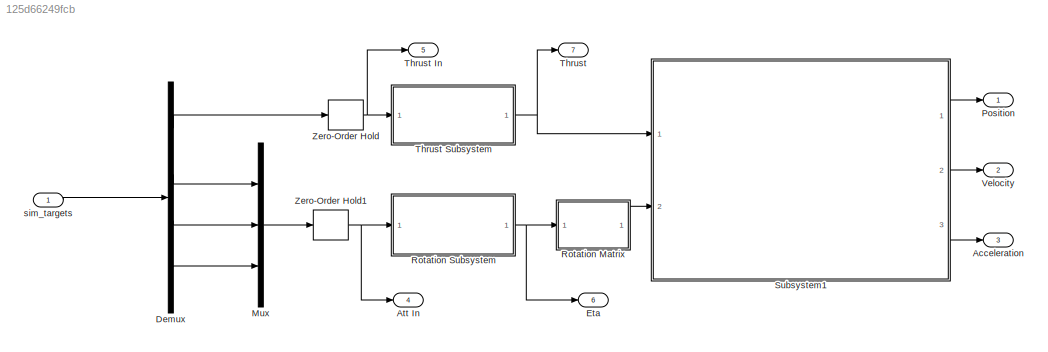
MODEL slx_125d66249fcb
KIND model
CONFIG AbsTol = auto
CONFIG EnableMultiTasking = off
CONFIG FixedStep = step_size
CONFIG MaxStep = auto
CONFIG MinStep = auto
CONFIG RelTol = 1e-3
CONFIG SampleTimeConstraint = Unconstrained
CONFIG Solver = FixedStepAuto
CONFIG SolverName = FixedStepAuto
CONFIG StartTime = 0.0
CONFIG StopTime = 10.0
BLOCK [Outport] Acceleration
  Port = 3
BLOCK [Outport] Att In
  Port = 4
BLOCK [Demux] Demux
  Ports = [1, 4]
BLOCK [Outport] Eta
  Port = 6
BLOCK [Mux] Mux
  DisplayOption = bar
  Inputs = 3
  Ports = [3, 1]
BLOCK [Outport] Position
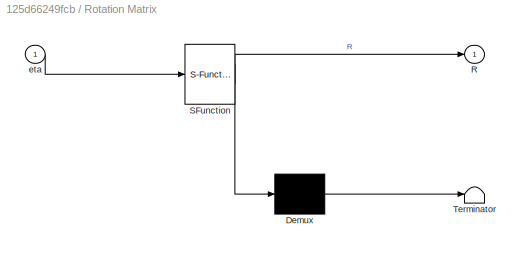
BLOCK [SubSystem] Rotation Matrix
  ErrorFcn = Stateflow.Translate.translate
  PermitHierarchicalResolution = ExplicitOnly
  Ports = [1, 1]
  RequestExecContextInheritance = off
  SFBlockType = MATLAB Function
  TreatAsAtomicUnit = on
BLOCK [Demux] Rotation Matrix/ Demux 
  Outputs = 1
  Ports = [1, 1]
BLOCK [S-Function] Rotation Matrix/ SFunction 
  EnableBusSupport = on
  FunctionName = sf_sfun
  PortCounts = [1 2]
  Ports = [1, 2]
  SFcnIsStateOwnerBlock = off
  SFunctionDeploymentMode = off
  Tag = Stateflow S-Function 2
BLOCK [Terminator] Rotation Matrix/ Terminator 
BLOCK [Outport] Rotation Matrix/R
  VectorParamsAs1DForOutWhenUnconnected = off
BLOCK [Inport] Rotation Matrix/eta
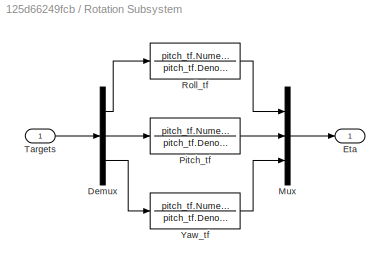
BLOCK [SubSystem] Rotation Subsystem
  Ports = [1, 1]
  RequestExecContextInheritance = off
BLOCK [Demux] Rotation Subsystem/Demux
  Outputs = 3
  Ports = [1, 3]
BLOCK [Outport] Rotation Subsystem/Eta
BLOCK [Mux] Rotation Subsystem/Mux
  DisplayOption = bar
  Inputs = 3
  Ports = [3, 1]
BLOCK [TransferFcn] Rotation Subsystem/Pitch_tf
  Denominator = pitch_tf.Denominator{1}
  Numerator = pitch_tf.Numerator{1}
BLOCK [TransferFcn] Rotation Subsystem/Roll_tf
  Denominator = pitch_tf.Denominator{1}
  Numerator = pitch_tf.Numerator{1}
BLOCK [Inport] Rotation Subsystem/Targets
BLOCK [TransferFcn] Rotation Subsystem/Yaw_tf
  Denominator = pitch_tf.Denominator{1}
  Numerator = pitch_tf.Numerator{1}
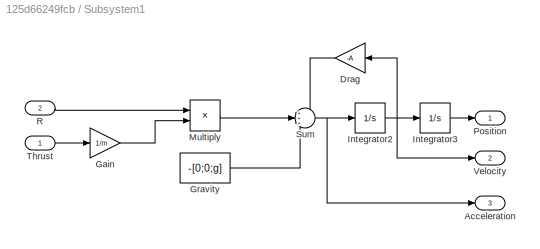
BLOCK [SubSystem] Subsystem1
  Ports = [2, 3]
  RequestExecContextInheritance = off
BLOCK [Outport] Subsystem1/Acceleration
  Port = 3
  VectorParamsAs1DForOutWhenUnconnected = off
BLOCK [Gain] Subsystem1/Drag
  Gain = -A
  Multiplication = Matrix(K*u)
  NameLocation = top
BLOCK [Gain] Subsystem1/Gain
  Gain = 1/m
  Multiplication = Matrix(K*u)
BLOCK [Constant] Subsystem1/Gravity
  Value = -[0;0;g]
BLOCK [Integrator] Subsystem1/Integrator2
  Ports = [1, 1]
BLOCK [Integrator] Subsystem1/Integrator3
  Ports = [1, 1]
BLOCK [Product] Subsystem1/Multiply
  Inputs = **
  Multiplication = Matrix(*)
  Ports = [2, 1]
BLOCK [Outport] Subsystem1/Position
  VectorParamsAs1DForOutWhenUnconnected = off
BLOCK [Inport] Subsystem1/R
  Port = 2
BLOCK [Sum] Subsystem1/Sum
  Inputs = +++
  Ports = [3, 1]
BLOCK [Inport] Subsystem1/Thrust
BLOCK [Outport] Subsystem1/Velocity
  Port = 2
  VectorParamsAs1DForOutWhenUnconnected = off
BLOCK [Outport] Thrust
  Port = 7
BLOCK [Outport] Thrust In
  Port = 5
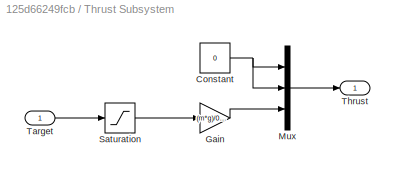
BLOCK [SubSystem] Thrust Subsystem
  Ports = [1, 1]
  RequestExecContextInheritance = off
BLOCK [Constant] Thrust Subsystem/Constant
  Value = 0
BLOCK [Gain] Thrust Subsystem/Gain
  Gain = (m*g)/0.23
BLOCK [Mux] Thrust Subsystem/Mux
  DisplayOption = bar
  Inputs = 3
  Ports = [3, 1]
BLOCK [Saturate] Thrust Subsystem/Saturation
  LowerLimit = 0
  UpperLimit = 1
BLOCK [Inport] Thrust Subsystem/Target
BLOCK [Outport] Thrust Subsystem/Thrust
BLOCK [Outport] Velocity
  Port = 2
BLOCK [ZeroOrderHold] Zero-Order Hold
  SampleTime = Ts
BLOCK [ZeroOrderHold] Zero-Order Hold1
  SampleTime = Ts
BLOCK [Inport] sim_targets
LINE Demux:1 -> Zero-Order Hold:1
LINE Demux:2 -> Mux:1
LINE Demux:3 -> Mux:2
LINE Demux:4 -> Mux:3
LINE Mux:1 -> Zero-Order Hold1:1
LINE Rotation Matrix:1 -> Subsystem1:2
LINE Rotation Subsystem/Demux:1 -> Rotation Subsystem/Roll_tf:1
LINE Rotation Subsystem/Demux:2 -> Rotation Subsystem/Pitch_tf:1
LINE Rotation Subsystem/Demux:3 -> Rotation Subsystem/Yaw_tf:1
LINE Rotation Subsystem/Mux:1 -> Rotation Subsystem/Eta:1
LINE Rotation Subsystem/Pitch_tf:1 -> Rotation Subsystem/Mux:2
LINE Rotation Subsystem/Roll_tf:1 -> Rotation Subsystem/Mux:1
LINE Rotation Subsystem/Targets:1 -> Rotation Subsystem/Demux:1
LINE Rotation Subsystem/Yaw_tf:1 -> Rotation Subsystem/Mux:3
NET Rotation Subsystem:1 -> Eta:1, Rotation Matrix:1
LINE Subsystem1/Drag:1 -> Subsystem1/Sum:1
LINE Subsystem1/Gain:1 -> Subsystem1/Multiply:2
LINE Subsystem1/Gravity:1 -> Subsystem1/Sum:3
NET Subsystem1/Integrator2:1 -> Subsystem1/Drag:1, Subsystem1/Integrator3:1, Subsystem1/Velocity:1
LINE Subsystem1/Integrator3:1 -> Subsystem1/Position:1
LINE Subsystem1/Multiply:1 -> Subsystem1/Sum:2
LINE Subsystem1/R:1 -> Subsystem1/Multiply:1
NET Subsystem1/Sum:1 -> Subsystem1/Acceleration:1, Subsystem1/Integrator2:1
LINE Subsystem1/Thrust:1 -> Subsystem1/Gain:1
LINE Subsystem1:1 -> Position:1
LINE Subsystem1:2 -> Velocity:1
LINE Subsystem1:3 -> Acceleration:1
NET Thrust Subsystem/Constant:1 -> Thrust Subsystem/Mux:1, Thrust Subsystem/Mux:2
LINE Thrust Subsystem/Gain:1 -> Thrust Subsystem/Mux:3
LINE Thrust Subsystem/Mux:1 -> Thrust Subsystem/Thrust:1
LINE Thrust Subsystem/Saturation:1 -> Thrust Subsystem/Gain:1
LINE Thrust Subsystem/Target:1 -> Thrust Subsystem/Saturation:1
NET Thrust Subsystem:1 -> Subsystem1:1, Thrust:1
NET Zero-Order Hold1:1 -> Att In:1, Rotation Subsystem:1
NET Zero-Order Hold:1 -> Thrust In:1, Thrust Subsystem:1
LINE sim_targets:1 -> Demux:1
note: NET lines group one-source signal fan-out (src -> all destinations, sorted); 1:1 wires keep LINE
CHART Rotation Matrix states=1 transitions=1
  STATE_LABEL 'eML_blk_kernel()'
  STATE_LABEL 'SCRIPT:\nfunction R = fcn(eta)\neta_deg = rad2deg(eta);\nphi     = eta_deg(1);\ntheta   = eta_deg(2);\npsi     = eta_deg(3);\n\nRz = rotz(psi);\nRy = roty(theta);\nRx = rotx(phi);\n\nR = Rz*Ry*Rx;\n'
CHART  states=0 transitions=0
